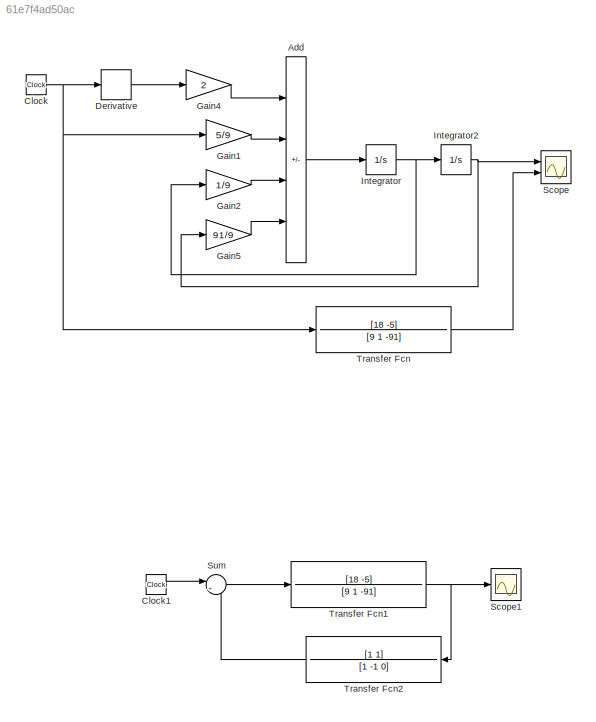
MODEL slx_61e7f4ad50ac
KIND model
CONFIG AbsTol = auto
CONFIG EnableMultiTasking = off
CONFIG FixedStep = 0.001
CONFIG MaxStep = auto
CONFIG MinStep = auto
CONFIG RelTol = 1e-3
CONFIG SampleTimeConstraint = Unconstrained
CONFIG SolverName = FixedStepAuto
CONFIG StartTime = 0.0
CONFIG StopTime = 10
BLOCK [Sum] Add
  IconShape = rectangular
  Inputs = +--+
  Ports = [4, 1]
BLOCK [Clock] Clock
BLOCK [Clock] Clock1
BLOCK [Derivative] Derivative
BLOCK [Gain] Gain1
  Gain = 5/9
BLOCK [Gain] Gain2
  Gain = 1/9
BLOCK [Gain] Gain4
  Gain = 2
BLOCK [Gain] Gain5
  Gain = 91/9
BLOCK [Integrator] Integrator
  Ports = [1, 1]
BLOCK [Integrator] Integrator2
  Ports = [1, 1]
BLOCK [Scope] Scope
  Floating = off
  NumInputPorts = 2
  Ports = [2]
  ScopeSpecificationString = Simulink.scopes.TimeScopeBlockCfg('CurrentConfiguration', extmgr.ConfigurationSet(extmgr.Configuration('Core','General UI',true,'FigureColor',[1 1 1]),extmgr.Configuration('Core','Source UI',true),extmgr.Configuration('Sources','WiredSimulink',true,'DataLoggingVariableName','ScopeData1'),extmgr.Configuration('Visuals','Time Domain',true,'SerializedDisplays',{struct('MinYLimReal','-426301676458.278...<+1947ch>
BLOCK [Scope] Scope1
  Floating = off
  NumInputPorts = 1
  Ports = [1]
  ScopeSpecificationString = Simulink.scopes.TimeScopeBlockCfg('CurrentConfiguration', extmgr.ConfigurationSet(extmgr.Configuration('Core','General UI',true),extmgr.Configuration('Core','Source UI',true),extmgr.Configuration('Sources','WiredSimulink',true),extmgr.Configuration('Visuals','Time Domain',true),extmgr.Configuration('Tools','Plot Navigation',true),extmgr.Configuration('Tools','Measurements',true)),'Version','2020b'...<+1ch>
BLOCK [Sum] Sum
  Inputs = |+-
  Ports = [2, 1]
BLOCK [TransferFcn] Transfer Fcn
  Denominator = [9 1 -91]
  Numerator = [18 -5]
BLOCK [TransferFcn] Transfer Fcn1
  Denominator = [9 1 -91]
  Numerator = [18 -5]
BLOCK [TransferFcn] Transfer Fcn2
  Denominator = [1 -1 0]
  NameLocation = top
  Numerator = [1 1]
LINE Add:1 -> Integrator:1
LINE Clock1:1 -> Sum:1
NET Clock:1 -> Derivative:1, Gain1:1, Transfer Fcn:1
LINE Derivative:1 -> Gain4:1
LINE Gain1:1 -> Add:2
LINE Gain2:1 -> Add:3
LINE Gain4:1 -> Add:1
LINE Gain5:1 -> Add:4
NET Integrator2:1 -> Gain5:1, Scope:1
NET Integrator:1 -> Gain2:1, Integrator2:1
LINE Sum:1 -> Transfer Fcn1:1
NET Transfer Fcn1:1 -> Scope1:1, Transfer Fcn2:1
LINE Transfer Fcn2:1 -> Sum:2
LINE Transfer Fcn:1 -> Scope:2
note: NET lines group one-source signal fan-out (src -> all destinations, sorted); 1:1 wires keep LINE
